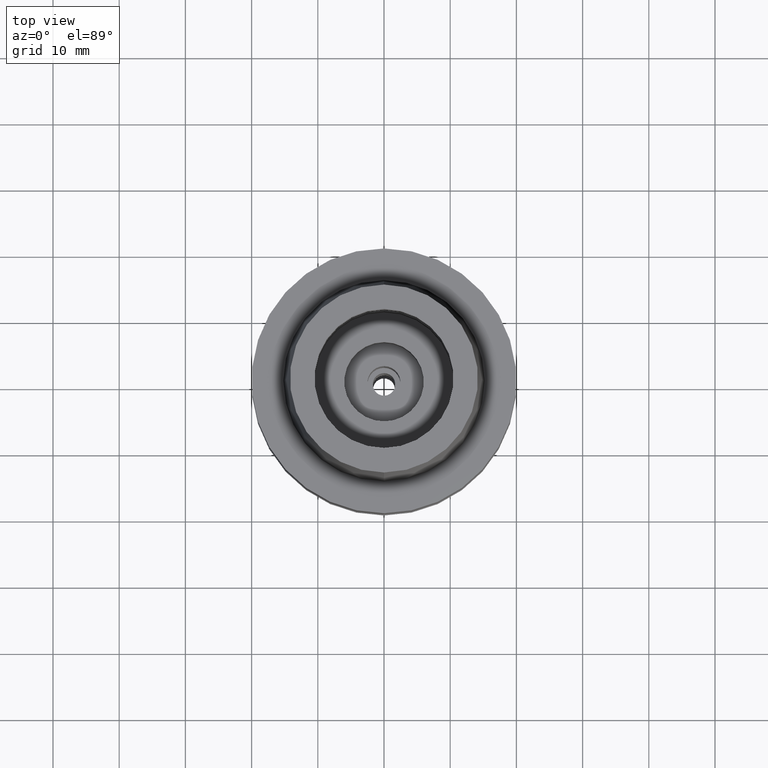
[diagram: clean part render]
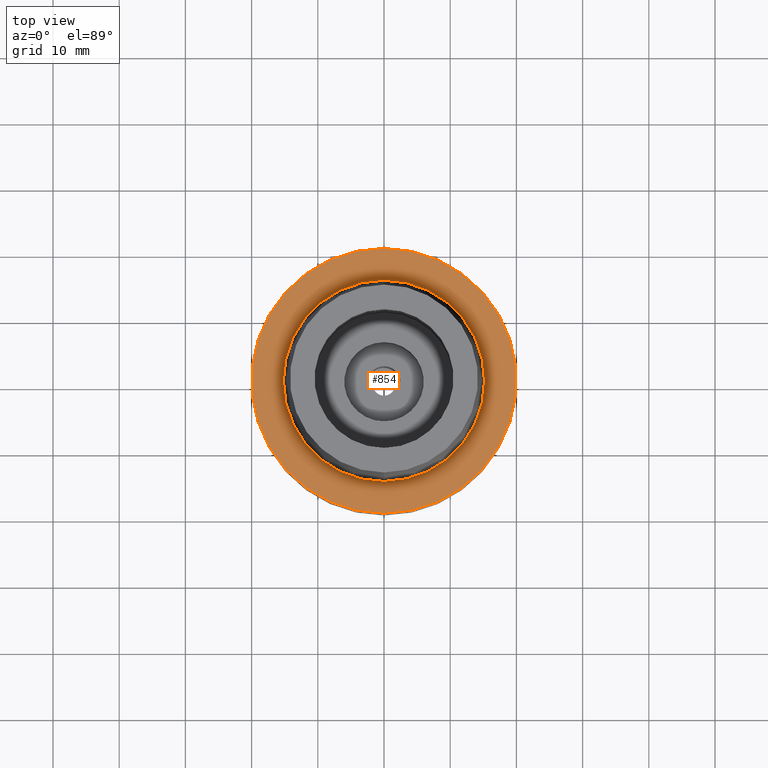
[diagram: same view with one face highlighted and labeled with its STEP entity id]
A machine part, top view. The second image highlights one B-rep face of the part: STEP entity #854.
In plain terms, the highlighted planar face has unit normal (0, 0, 1).
Its self-contained STEP definition (entity closure, byte-faithful):
#17 = EDGE_CURVE ( 'NONE', #1340, #2335, #2099, .T. ) ;
#73 = CARTESIAN_POINT ( 'NONE',  ( 0.0000000000000000000, 0.0000000000000000000, 6.821210263297000155E-13 ) ) ;
#381 = DIRECTION ( 'NONE',  ( 0.0000000000000000000, 0.0000000000000000000, 1.000000000000000000 ) ) ;
#490 = EDGE_CURVE ( 'NONE', #2296, #2610, #1071, .T. ) ;
#508 = DIRECTION ( 'NONE',  ( 0.0000000000000000000, 0.0000000000000000000, -1.000000000000000000 ) ) ;
#546 = AXIS2_PLACEMENT_3D ( 'NONE', #2431, #2399, #756 ) ;
#561 = FACE_OUTER_BOUND ( 'NONE', #1074, .T. ) ;
#609 = ORIENTED_EDGE ( 'NONE', *, *, #17, .F. ) ;
#611 = CARTESIAN_POINT ( 'NONE',  ( 0.0000000000000000000, 15.19999963424000100, 3.801403636316999971E-13 ) ) ;
#640 = DIRECTION ( 'NONE',  ( 0.0000000000000000000, 0.0000000000000000000, 1.000000000000000000 ) ) ;
#708 = EDGE_CURVE ( 'NONE', #2610, #2296, #1718, .T. ) ;
#756 = DIRECTION ( 'NONE',  ( 0.0000000000000000000, -1.000000000000000000, 0.0000000000000000000 ) ) ;
#854 = ADVANCED_FACE ( 'NONE', ( #561, #2270 ), #1223, .T. ) ;
#1071 = CIRCLE ( 'NONE', #2020, 20.00000000000000000 ) ;
#1074 = EDGE_LOOP ( 'NONE', ( #1623, #2116 ) ) ;
#1102 = ORIENTED_EDGE ( 'NONE', *, *, #2205, .F. ) ;
#1223 = PLANE ( 'NONE',  #2244 ) ;
#1270 = CIRCLE ( 'NONE', #1311, 15.19999963424000100 ) ;
#1311 = AXIS2_PLACEMENT_3D ( 'NONE', #73, #381, #1610 ) ;
#1340 = VERTEX_POINT ( 'NONE', #2540 ) ;
#1393 = CARTESIAN_POINT ( 'NONE',  ( 0.0000000000000000000, -20.00000000000000000, -1.989519660127999812E-13 ) ) ;
#1471 = DIRECTION ( 'NONE',  ( 0.0000000000000000000, -1.000000000000000000, 0.0000000000000000000 ) ) ;
#1524 = CARTESIAN_POINT ( 'NONE',  ( 0.0000000000000000000, 0.0000000000000000000, -1.989519660127999812E-13 ) ) ;
#1610 = DIRECTION ( 'NONE',  ( 0.0000000000000000000, 1.000000000000000000, 0.0000000000000000000 ) ) ;
#1623 = ORIENTED_EDGE ( 'NONE', *, *, #490, .F. ) ;
#1718 = CIRCLE ( 'NONE', #546, 20.00000000000000000 ) ;
#1828 = DIRECTION ( 'NONE',  ( 1.000000000000000000, 0.0000000000000000000, 0.0000000000000000000 ) ) ;
#1934 = AXIS2_PLACEMENT_3D ( 'NONE', #2505, #640, #1471 ) ;
#2020 = AXIS2_PLACEMENT_3D ( 'NONE', #1524, #508, #2126 ) ;
#2065 = CARTESIAN_POINT ( 'NONE',  ( 0.0000000000000000000, 0.0000000000000000000, 0.0000000000000000000 ) ) ;
#2077 = CARTESIAN_POINT ( 'NONE',  ( 0.0000000000000000000, 20.00000000000000000, -1.989519660127999812E-13 ) ) ;
#2099 = CIRCLE ( 'NONE', #1934, 15.19999963424000100 ) ;
#2116 = ORIENTED_EDGE ( 'NONE', *, *, #708, .F. ) ;
#2126 = DIRECTION ( 'NONE',  ( 0.0000000000000000000, 1.000000000000000000, 0.0000000000000000000 ) ) ;
#2205 = EDGE_CURVE ( 'NONE', #2335, #1340, #1270, .T. ) ;
#2213 = EDGE_LOOP ( 'NONE', ( #1102, #609 ) ) ;
#2244 = AXIS2_PLACEMENT_3D ( 'NONE', #2065, #2651, #1828 ) ;
#2270 = FACE_BOUND ( 'NONE', #2213, .T. ) ;
#2296 = VERTEX_POINT ( 'NONE', #2077 ) ;
#2335 = VERTEX_POINT ( 'NONE', #611 ) ;
#2399 = DIRECTION ( 'NONE',  ( 0.0000000000000000000, 0.0000000000000000000, -1.000000000000000000 ) ) ;
#2431 = CARTESIAN_POINT ( 'NONE',  ( 0.0000000000000000000, 0.0000000000000000000, -1.989519660127999812E-13 ) ) ;
#2505 = CARTESIAN_POINT ( 'NONE',  ( 0.0000000000000000000, 0.0000000000000000000, 6.821210263297000155E-13 ) ) ;
#2540 = CARTESIAN_POINT ( 'NONE',  ( 0.0000000000000000000, -15.19999963424000100, 3.801403636316999971E-13 ) ) ;
#2610 = VERTEX_POINT ( 'NONE', #1393 ) ;
#2651 = DIRECTION ( 'NONE',  ( 0.0000000000000000000, 0.0000000000000000000, 1.000000000000000000 ) ) ;